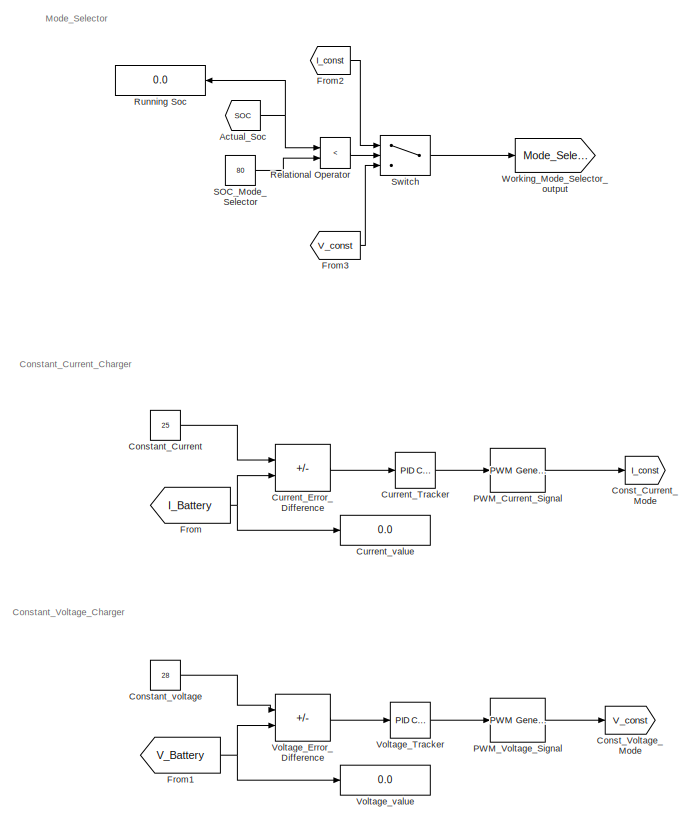
[diagram: root canvas - part 1/2, left side, full height]
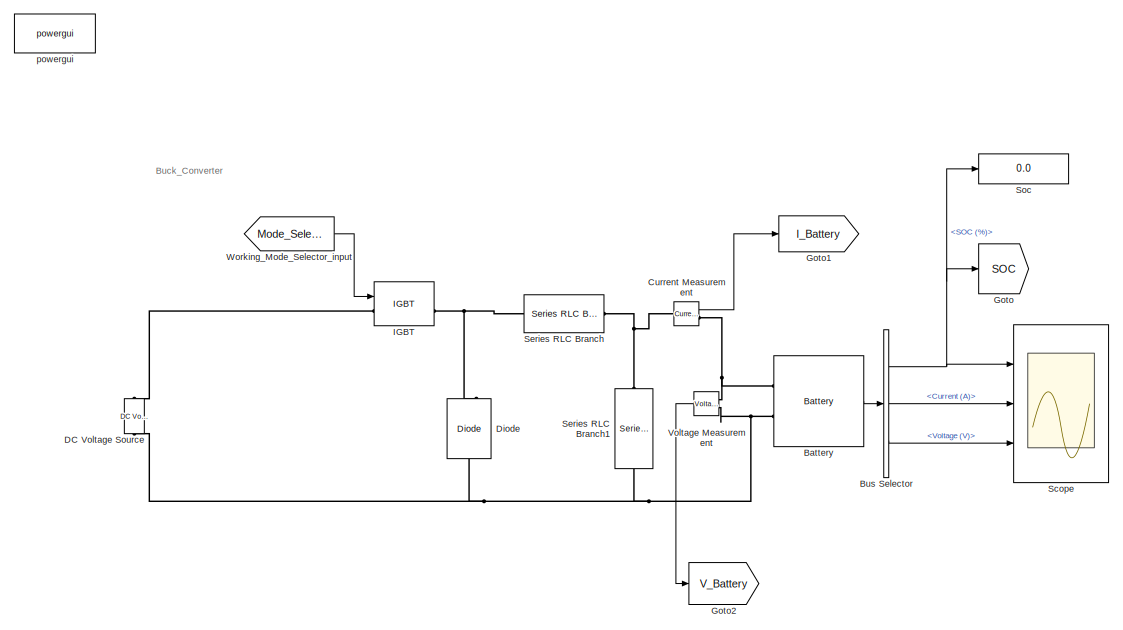
[diagram: root canvas - part 2/2, right side, full height]
MODEL slx_242ed290106b
KIND model
CONFIG AbsTol = auto
CONFIG EnableMultiTasking = off
CONFIG FixedStep = 0.001
CONFIG MaxStep = auto
CONFIG MinStep = auto
CONFIG RelTol = 1e-3
CONFIG SampleTimeConstraint = Unconstrained
CONFIG SolverName = VariableStepAuto
CONFIG StartTime = 0.0
CONFIG StopTime = 50
BLOCK [From] Actual_Soc
  GotoTag = SOC
BLOCK [Reference] Battery  REF=spsBatteryLib/Battery
  NameLocation = top
  Ports = [0, 1, 0, 0, 0, 2]
  SourceBlock = spsBatteryLib/Battery
  SourceProductBaseCode = PS
  SourceType = Battery
BLOCK [BusSelector] Bus Selector
  OutputSignals = SOC (%),Current (A),Voltage (V)
  Ports = [1, 3]
BLOCK [Goto] Const_Current_Mode
  GotoTag = I_const
BLOCK [Goto] Const_Voltage_Mode
  GotoTag = V_const
BLOCK [Constant] Constant_Current
  Value = 25
BLOCK [Constant] Constant_voltage
  Value = 28
BLOCK [Reference] Current Measurement  REF=spsCurrentMeasurementLib/Current Measurement
  Ports = [0, 1, 0, 0, 0, 1, 1]
  SourceBlock = spsCurrentMeasurementLib/Current Measurement
  SourceProductBaseCode = PS
  SourceType = Current Measurement
  UserDataPersistent = on
BLOCK [Sum] Current_Error_Difference
  IconShape = rectangular
  Inputs = +-
  Ports = [2, 1]
BLOCK [Reference] Current_Tracker  REF=slpidlib/PID Controller
  Ports = [1, 1]
  SourceBlock = slpidlib/PID Controller
  SourceProductBaseCode = SL
  SourceType = PID 1dof
BLOCK [Display] Current_value
  Decimation = 1
  Ports = [1]
BLOCK [Reference] DC Voltage Source  REF=spsDCVoltageSourceLib/DC Voltage Source
  Ports = [0, 0, 0, 0, 0, 1, 1]
  SourceBlock = spsDCVoltageSourceLib/DC Voltage Source
  SourceProductBaseCode = PS
  SourceType = DC Voltage Source
BLOCK [Reference] Diode  REF=spsDiodeLib/Diode
  NameLocation = right
  Ports = [0, 1, 0, 0, 0, 1, 1]
  SourceBlock = spsDiodeLib/Diode
  SourceProductBaseCode = PS
  SourceType = Diode
BLOCK [From] From
  GotoTag = I_Battery
BLOCK [From] From1
  GotoTag = V_Battery
BLOCK [From] From2
  GotoTag = I_const
BLOCK [From] From3
  GotoTag = V_const
BLOCK [Goto] Goto
  GotoTag = SOC
BLOCK [Goto] Goto1
  GotoTag = I_Battery
BLOCK [Goto] Goto2
  GotoTag = V_Battery
BLOCK [Reference] IGBT  REF=spsIGBTLib/IGBT
  Ports = [1, 1, 0, 0, 0, 1, 1]
  SourceBlock = spsIGBTLib/IGBT
  SourceProductBaseCode = PS
  SourceType = IGBT
BLOCK [Reference] PWM_Current_Signal  REF=spsPWMGeneratorDCDCLib/PWM Generator
(DC-DC)
  Ports = [1, 1]
  SourceBlock = spsPWMGeneratorDCDCLib/PWM Generator\n(DC-DC)
  SourceProductBaseCode = PS
  SourceType = PWM Generator (DC-DC)
BLOCK [Reference] PWM_Voltage_Signal  REF=spsPWMGeneratorDCDCLib/PWM Generator
(DC-DC)
  Ports = [1, 1]
  SourceBlock = spsPWMGeneratorDCDCLib/PWM Generator\n(DC-DC)
  SourceProductBaseCode = PS
  SourceType = PWM Generator (DC-DC)
BLOCK [RelationalOperator] Relational Operator
  InputSameDT = off
  Operator = <
  OutDataTypeStr = boolean
  Ports = [2, 1]
  RndMeth = Simplest
BLOCK [Display] Running Soc
  Decimation = 1
  NameLocation = top
  Ports = [1]
BLOCK [Constant] SOC_Mode_Selector
  Value = 80
BLOCK [Scope] Scope
  Floating = off
  NumInputPorts = 3
  Ports = [3]
  ScopeSpecificationString = Simulink.scopes.TimeScopeBlockCfg('CurrentConfiguration', extmgr.ConfigurationSet(extmgr.Configuration('Core','General UI',true),extmgr.Configuration('Core','Source UI',true),extmgr.Configuration('Sources','WiredSimulink',true),extmgr.Configuration('Visuals','Time Domain',true,'SerializedDisplays',{struct('MinYLimReal','-610.74646','MaxYLimReal','1216.70082','YLabelReal','','MinYLimMag',' 0.00000'...<+1450ch>
BLOCK [Reference] Series RLC Branch  REF=spsSeriesRLCBranchLib/Series RLC Branch
  Ports = [0, 0, 0, 0, 0, 1, 1]
  SourceBlock = spsSeriesRLCBranchLib/Series RLC Branch
  SourceProductBaseCode = PS
  SourceType = Series RLC Branch
BLOCK [Reference] Series RLC Branch1  REF=spsSeriesRLCBranchLib/Series RLC Branch
  NameLocation = left
  Ports = [0, 0, 0, 0, 0, 1, 1]
  SourceBlock = spsSeriesRLCBranchLib/Series RLC Branch
  SourceProductBaseCode = PS
  SourceType = Series RLC Branch
BLOCK [Display] Soc
  Decimation = 1
  Ports = [1]
BLOCK [Switch] Switch
  Criteria = u2 > Threshold
  InputSameDT = off
  SaturateOnIntegerOverflow = off
BLOCK [Reference] Voltage Measurement  REF=spsVoltageMeasurementLib/Voltage Measurement
  NameLocation = top
  Ports = [0, 1, 0, 0, 0, 2]
  SourceBlock = spsVoltageMeasurementLib/Voltage Measurement
  SourceProductBaseCode = PS
  SourceType = Voltage Measurement
  UserDataPersistent = on
BLOCK [Sum] Voltage_Error_Difference
  IconShape = rectangular
  Inputs = +-
  Ports = [2, 1]
BLOCK [Reference] Voltage_Tracker  REF=slpidlib/PID Controller
  Ports = [1, 1]
  SourceBlock = slpidlib/PID Controller
  SourceProductBaseCode = SL
  SourceType = PID 1dof
BLOCK [Display] Voltage_value
  Decimation = 1
  Ports = [1]
BLOCK [From] Working_Mode_Selector_input
  GotoTag = Mode_Selector
BLOCK [Goto] Working_Mode_Selector_output
  GotoTag = Mode_Selector
BLOCK [Reference] powergui  REF=spspowerguiLib/powergui
  Ports = []
  Priority = 1
  SourceBlock = spspowerguiLib/powergui
  SourceProductBaseCode = PS
  SourceType = PSB option menu block
ANNOTATION (root): Buck_Converter
ANNOTATION (root): Constant_Current_Charger
ANNOTATION (root): Constant_Voltage_Charger
ANNOTATION (root): Mode_Selector
NET Actual_Soc:1 -> Relational Operator:1, Running Soc:1
LINE Battery:1 -> Bus Selector:1
NET Bus Selector:1 -> Goto:1, Scope:1, Soc:1
LINE Bus Selector:2 -> Scope:2
LINE Bus Selector:3 -> Scope:3
LINE Constant_Current:1 -> Current_Error_Difference:1
LINE Constant_voltage:1 -> Voltage_Error_Difference:1
LINE Current Measurement:1 -> Goto1:1
LINE Current_Error_Difference:1 -> Current_Tracker:1
LINE Current_Tracker:1 -> PWM_Current_Signal:1
NET From1:1 -> Voltage_Error_Difference:2, Voltage_value:1
LINE From2:1 -> Switch:1
LINE From3:1 -> Switch:3
NET From:1 -> Current_Error_Difference:2, Current_value:1
LINE PWM_Current_Signal:1 -> Const_Current_Mode:1
LINE PWM_Voltage_Signal:1 -> Const_Voltage_Mode:1
LINE Relational Operator:1 -> Switch:2
LINE SOC_Mode_Selector:1 -> Relational Operator:2
LINE Switch:1 -> Working_Mode_Selector_output:1
LINE Voltage Measurement:1 -> Goto2:1
LINE Voltage_Error_Difference:1 -> Voltage_Tracker:1
LINE Voltage_Tracker:1 -> PWM_Voltage_Signal:1
LINE Working_Mode_Selector_input:1 -> IGBT:1
PNET net1: Battery:LConn1 -- Current Measurement:RConn1 -- Voltage Measurement:LConn1
PNET net2: Battery:LConn2 -- DC Voltage Source:LConn1 -- Diode:LConn1 -- Series RLC Branch1:RConn1 -- Voltage Measurement:LConn2
PNET net3: Current Measurement:LConn1 -- Series RLC Branch1:LConn1 -- Series RLC Branch:RConn1
PLINE DC Voltage Source:RConn1 -- IGBT:LConn1
PNET net4: Diode:RConn1 -- IGBT:RConn1 -- Series RLC Branch:LConn1
note: NET lines group one-source signal fan-out (src -> all destinations, sorted); 1:1 wires keep LINE; PNET lines group multi-terminal physical nets as a canonical sorted terminal list (undirected conserving connections); 2-terminal nets keep the pairwise PLINE form
